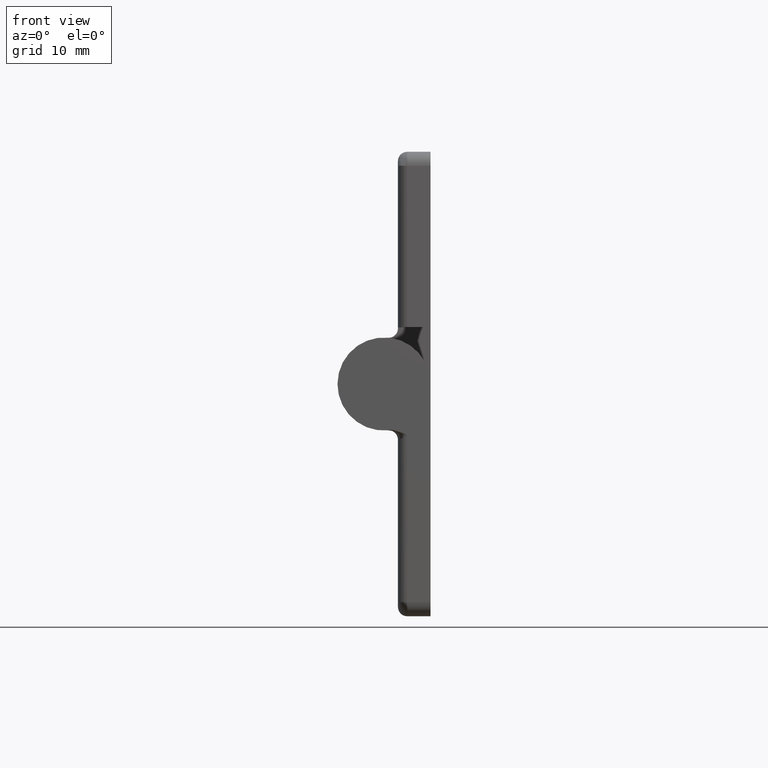
[diagram: clean part render]
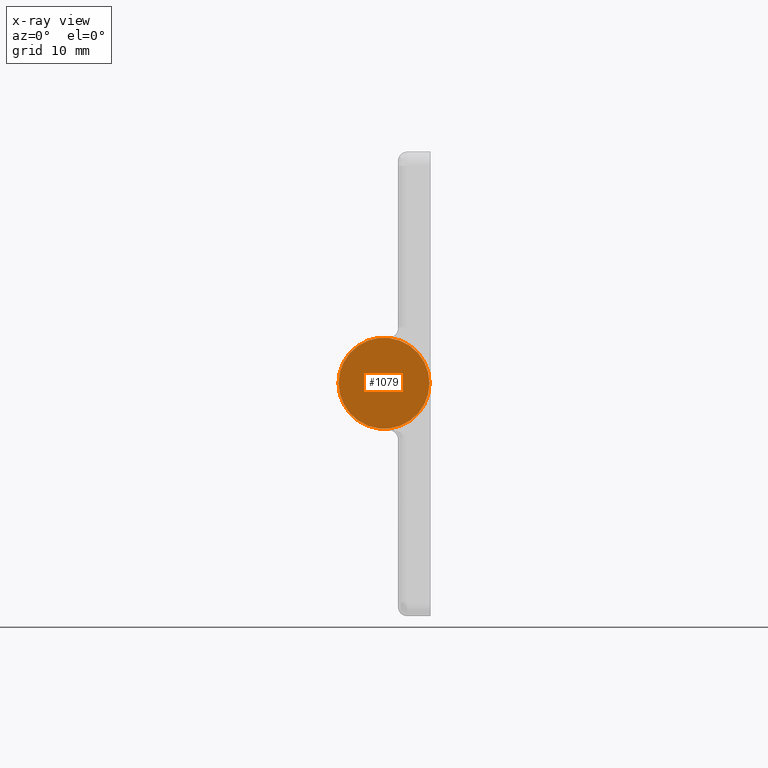
[diagram: x-ray — body ghosted, one internal face saturated and labeled with its STEP entity id]
A machine part, front view, then the same camera in x-ray: the body is ghosted and one INTERNAL B-rep face — a face not visible from any outside direction — is saturated and labeled: STEP entity #1079.
In plain terms, the highlighted planar face has unit normal (-0, 1, 0).
Its self-contained STEP definition (entity closure, byte-faithful):
#93=PLANE('',#1177);
#148=FACE_OUTER_BOUND('',#225,.T.);
#225=EDGE_LOOP('',(#881));
#454=CIRCLE('',#1176,4.9);
#536=VERTEX_POINT('',#1868);
#660=EDGE_CURVE('',#536,#536,#454,.T.);
#881=ORIENTED_EDGE('',*,*,#660,.T.);
#1079=ADVANCED_FACE('',(#148),#93,.F.);
#1176=AXIS2_PLACEMENT_3D('',#1869,#1407,#1408);
#1177=AXIS2_PLACEMENT_3D('',#1870,#1409,#1410);
#1407=DIRECTION('center_axis',(0.,-1.,0.));
#1408=DIRECTION('ref_axis',(1.,0.,0.));
#1409=DIRECTION('center_axis',(0.,1.,0.));
#1410=DIRECTION('ref_axis',(0.,0.,1.));
#1868=CARTESIAN_POINT('',(-4.9,0.,6.00076931582203E-16));
#1869=CARTESIAN_POINT('Origin',(0.,0.,0.));
#1870=CARTESIAN_POINT('Origin',(2.38819850527285E-16,0.,9.44067197810507E-17));